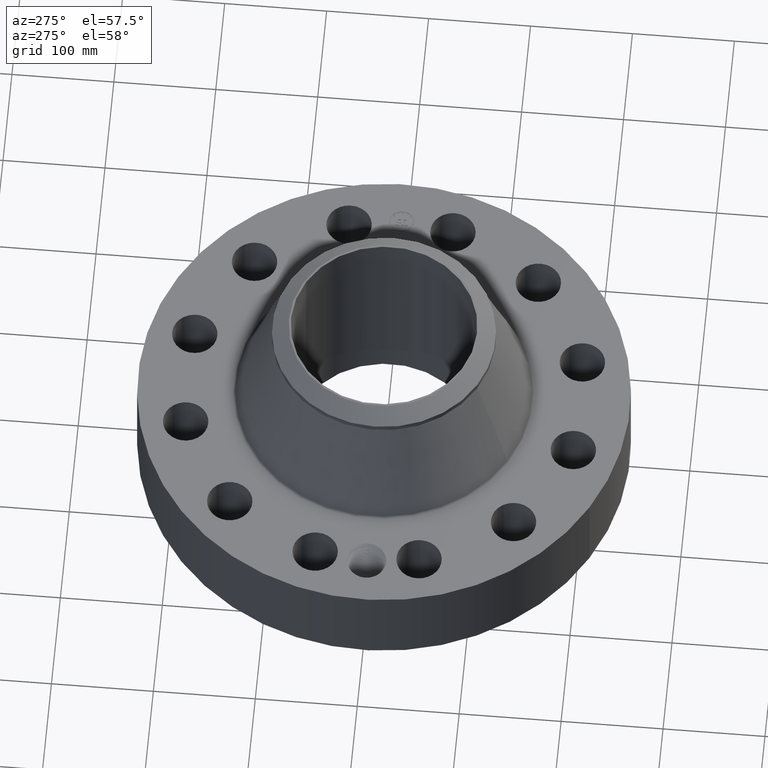
[diagram: clean part render]
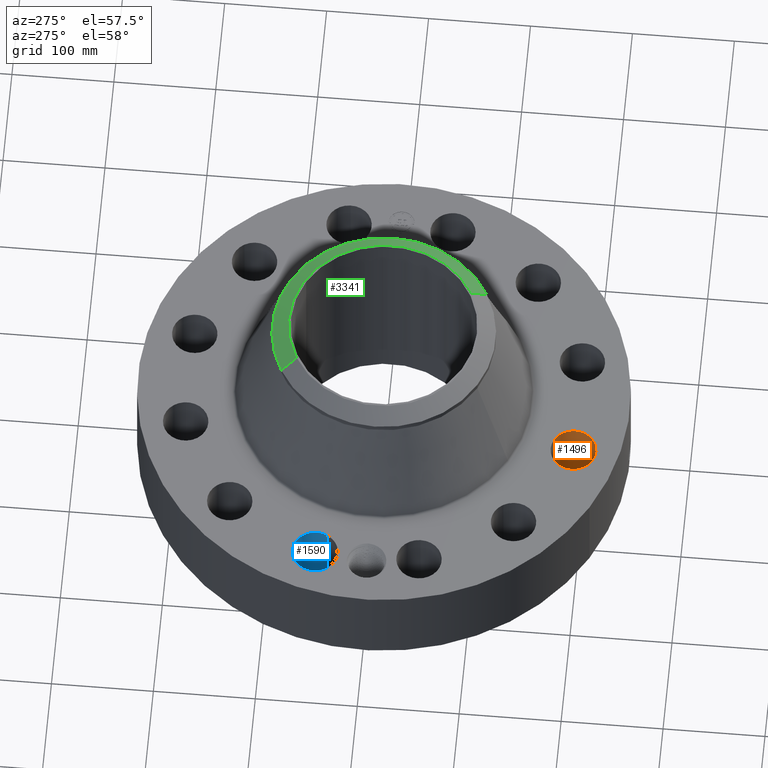
[diagram: same view with three faces highlighted in distinct colors, each labeled with its STEP entity id]
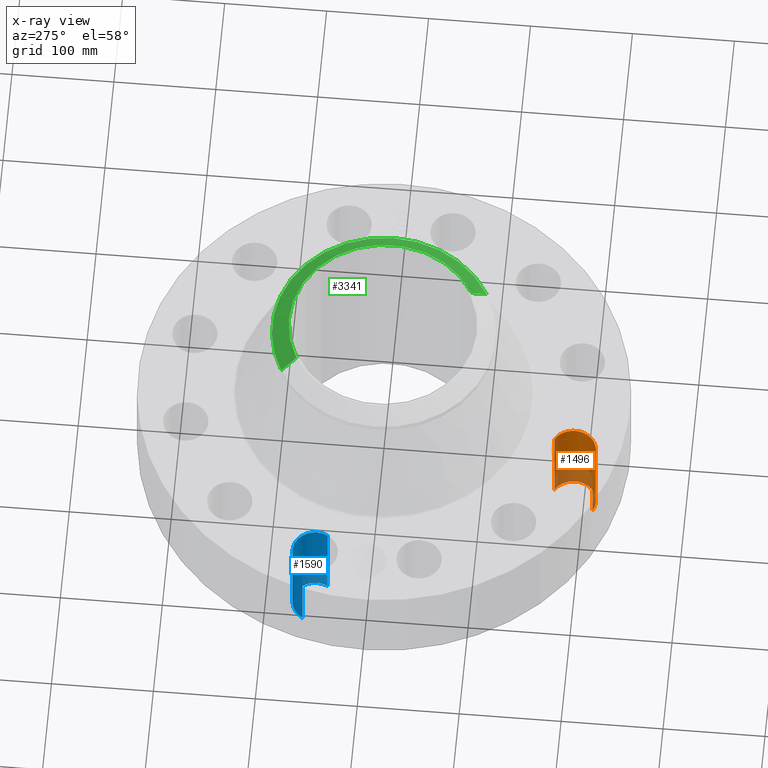
[diagram: x-ray of the same camera — body ghosted, the three highlighted faces saturated]
A machine part, auxiliary view with three faces highlighted in distinct colors.
The next image is the same camera in x-ray (body ghosted, the three faces saturated) — at least one of them is partly hidden behind the body in this view.
Their STEP definitions:

[orange] entity #1496 — the highlighted cylindrical surface (edge-blend (fillet) strip) has radius 22.225 mm, axis along (0, -0, -1).
#316=AXIS2_PLACEMENT_3D('Circle Axis2P3D',#314,#315,$) ;
#726=AXIS2_PLACEMENT_3D('Circle Axis2P3D',#724,#725,$) ;
#1478=AXIS2_PLACEMENT_3D('Cylinder Axis2P3D',#1475,#1476,#1477) ;
#314=CARTESIAN_POINT('Axis2P3D Location',(-2.00584759955,-7.48592515377,0.250000000001)) ;
#318=CARTESIAN_POINT('Vertex',(-1.58635025327,-6.71804041211,0.250000000001)) ;
#320=CARTESIAN_POINT('Vertex',(-2.42534494583,-8.25380989543,0.250000000001)) ;
#719=CARTESIAN_POINT('Vertex',(-2.42534494583,-8.25380989543,3.87000000002)) ;
#721=CARTESIAN_POINT('Vertex',(-1.58635025327,-6.71804041211,3.87000000002)) ;
#724=CARTESIAN_POINT('Axis2P3D Location',(-2.00584759955,-7.48592515377,3.87000000002)) ;
#1475=CARTESIAN_POINT('Axis2P3D Location',(-2.00584759955,-7.48592515377,3.86606299214)) ;
#1480=CARTESIAN_POINT('Line Origine',(-1.58635025327,-6.71804041211,2.06000000001)) ;
#1485=CARTESIAN_POINT('Line Origine',(-2.42534494583,-8.25380989543,2.06000000001)) ;
#315=DIRECTION('Axis2P3D Direction',(0.,0.,-0.0393700787402)) ;
#725=DIRECTION('Axis2P3D Direction',(0.,0.,-0.0393700787402)) ;
#1476=DIRECTION('Axis2P3D Direction',(0.,-0.,-0.0393700787402)) ;
#1477=DIRECTION('Axis2P3D XDirection',(-0.0188750212049,-0.0345504945626,0.)) ;
#1481=DIRECTION('Vector Direction',(0.,0.,-0.0393700787402)) ;
#1486=DIRECTION('Vector Direction',(0.,0.,-0.0393700787402)) ;
#1482=VECTOR('Line Direction',#1481,0.0393700787402) ;
#1487=VECTOR('Line Direction',#1486,0.0393700787402) ;
#1491=ORIENTED_EDGE('',*,*,#1484,.F.) ;
#1492=ORIENTED_EDGE('',*,*,#322,.T.) ;
#1493=ORIENTED_EDGE('',*,*,#1489,.T.) ;
#1494=ORIENTED_EDGE('',*,*,#728,.F.) ;
#1496=ADVANCED_FACE('PartBody',(#1495),#1479,.F.) ;
#317=CIRCLE('generated circle',#316,0.875000000003) ;
#727=CIRCLE('generated circle',#726,0.875000000003) ;
#1479=CYLINDRICAL_SURFACE('generated cylinder',#1478,0.875000000003) ;
#322=EDGE_CURVE('',#319,#321,#317,.T.) ;
#728=EDGE_CURVE('',#722,#720,#727,.T.) ;
#1484=EDGE_CURVE('',#319,#722,#1483,.F.) ;
#1489=EDGE_CURVE('',#321,#720,#1488,.F.) ;
#1490=EDGE_LOOP('',(#1491,#1492,#1493,#1494)) ;
#1495=FACE_OUTER_BOUND('',#1490,.T.) ;
#1483=LINE('Line',#1480,#1482) ;
#1488=LINE('Line',#1485,#1487) ;
#319=VERTEX_POINT('',#318) ;
#321=VERTEX_POINT('',#320) ;
#720=VERTEX_POINT('',#719) ;
#722=VERTEX_POINT('',#721) ;

[blue] entity #1590 — the highlighted cylindrical surface (edge-blend (fillet) strip) has radius 22.225 mm, axis along (-0, 0, -1).
#379=AXIS2_PLACEMENT_3D('Circle Axis2P3D',#377,#378,$) ;
#771=AXIS2_PLACEMENT_3D('Circle Axis2P3D',#769,#770,$) ;
#1565=AXIS2_PLACEMENT_3D('Cylinder Axis2P3D',#1562,#1563,#1564) ;
#372=CARTESIAN_POINT('Vertex',(-6.71804041211,1.58635025327,0.250000000001)) ;
#374=CARTESIAN_POINT('Vertex',(-8.25380989543,2.42534494583,0.250000000001)) ;
#377=CARTESIAN_POINT('Axis2P3D Location',(-7.48592515377,2.00584759955,0.250000000001)) ;
#769=CARTESIAN_POINT('Axis2P3D Location',(-7.48592515377,2.00584759955,3.87000000002)) ;
#773=CARTESIAN_POINT('Vertex',(-8.25380989543,2.42534494583,3.87000000002)) ;
#775=CARTESIAN_POINT('Vertex',(-6.71804041211,1.58635025327,3.87000000002)) ;
#1562=CARTESIAN_POINT('Axis2P3D Location',(-7.48592515377,2.00584759955,3.86606299214)) ;
#1567=CARTESIAN_POINT('Line Origine',(-6.71804041211,1.58635025327,2.06000000001)) ;
#1572=CARTESIAN_POINT('Line Origine',(-8.25380989543,2.42534494583,2.06000000001)) ;
#378=DIRECTION('Axis2P3D Direction',(0.,0.,-0.0393700787402)) ;
#770=DIRECTION('Axis2P3D Direction',(0.,0.,-0.0393700787402)) ;
#1563=DIRECTION('Axis2P3D Direction',(-0.,0.,-0.0393700787402)) ;
#1564=DIRECTION('Axis2P3D XDirection',(-0.0345504945626,0.0188750212049,0.)) ;
#1568=DIRECTION('Vector Direction',(0.,0.,-0.0393700787402)) ;
#1573=DIRECTION('Vector Direction',(0.,0.,-0.0393700787402)) ;
#1569=VECTOR('Line Direction',#1568,0.0393700787402) ;
#1574=VECTOR('Line Direction',#1573,0.0393700787402) ;
#1585=ORIENTED_EDGE('',*,*,#1576,.F.) ;
#1586=ORIENTED_EDGE('',*,*,#381,.T.) ;
#1587=ORIENTED_EDGE('',*,*,#1571,.T.) ;
#1588=ORIENTED_EDGE('',*,*,#777,.F.) ;
#1590=ADVANCED_FACE('PartBody',(#1589),#1566,.F.) ;
#380=CIRCLE('generated circle',#379,0.875000000003) ;
#772=CIRCLE('generated circle',#771,0.875000000003) ;
#1566=CYLINDRICAL_SURFACE('generated cylinder',#1565,0.875000000003) ;
#381=EDGE_CURVE('',#375,#373,#380,.T.) ;
#777=EDGE_CURVE('',#774,#776,#772,.T.) ;
#1571=EDGE_CURVE('',#373,#776,#1570,.F.) ;
#1576=EDGE_CURVE('',#375,#774,#1575,.F.) ;
#1584=EDGE_LOOP('',(#1585,#1586,#1587,#1588)) ;
#1589=FACE_OUTER_BOUND('',#1584,.T.) ;
#1570=LINE('Line',#1567,#1569) ;
#1575=LINE('Line',#1572,#1574) ;
#373=VERTEX_POINT('',#372) ;
#375=VERTEX_POINT('',#374) ;
#774=VERTEX_POINT('',#773) ;
#776=VERTEX_POINT('',#775) ;

[green] entity #3341 — the highlighted conical surface has half-angle 52.5 deg.
#2484=AXIS2_PLACEMENT_3D('Circle Axis2P3D',#2482,#2483,$) ;
#3286=AXIS2_PLACEMENT_3D('Cone Axis2P3D',#3283,#3284,#3285) ;
#3324=AXIS2_PLACEMENT_3D('Circle Axis2P3D',#3322,#3323,$) ;
#3331=AXIS2_PLACEMENT_3D('Circle Axis2P3D',#3329,#3330,$) ;
#2482=CARTESIAN_POINT('Axis2P3D Location',(0.,0.,8.63000000003)) ;
#2486=CARTESIAN_POINT('Vertex',(1.76056571539,-3.22269392529,8.63000000003)) ;
#2488=CARTESIAN_POINT('Vertex',(-1.76056571539,3.22269392529,8.63000000003)) ;
#3283=CARTESIAN_POINT('Axis2P3D Location',(0.,0.,8.63000000003)) ;
#3288=CARTESIAN_POINT('Line Origine',(1.91464345724,-3.50473133993,8.38339651306)) ;
#3292=CARTESIAN_POINT('Vertex',(2.06872119909,-3.78676875457,8.13679302608)) ;
#3295=CARTESIAN_POINT('Line Origine',(-1.91464345724,3.50473133993,8.38339651306)) ;
#3299=CARTESIAN_POINT('Vertex',(-2.06872119909,3.78676875457,8.13679302608)) ;
#3322=CARTESIAN_POINT('Axis2P3D Location',(0.,0.,8.13679302608)) ;
#3326=CARTESIAN_POINT('Vertex',(2.06872119909,3.78676875457,8.13679302608)) ;
#3329=CARTESIAN_POINT('Axis2P3D Location',(0.,0.,8.13679302608)) ;
#2483=DIRECTION('Axis2P3D Direction',(0.,0.,-0.0393700787402)) ;
#3284=DIRECTION('Axis2P3D Direction',(-0.,-0.,-0.0393700787402)) ;
#3285=DIRECTION('Axis2P3D XDirection',(-0.0188750212049,0.0345504945626,0.)) ;
#3289=DIRECTION('Vector Direction',(0.014974561121,-0.02741075027,-0.023966985394)) ;
#3296=DIRECTION('Vector Direction',(-0.014974561121,0.02741075027,-0.023966985394)) ;
#3323=DIRECTION('Axis2P3D Direction',(0.,0.,-0.0393700787402)) ;
#3330=DIRECTION('Axis2P3D Direction',(0.,0.,-0.0393700787402)) ;
#3290=VECTOR('Line Direction',#3289,0.0393700787402) ;
#3297=VECTOR('Line Direction',#3296,0.0393700787402) ;
#3335=ORIENTED_EDGE('',*,*,#3301,.F.) ;
#3336=ORIENTED_EDGE('',*,*,#2490,.F.) ;
#3337=ORIENTED_EDGE('',*,*,#3294,.T.) ;
#3338=ORIENTED_EDGE('',*,*,#3328,.T.) ;
#3339=ORIENTED_EDGE('',*,*,#3333,.F.) ;
#3341=ADVANCED_FACE('PartBody',(#3340),#3287,.T.) ;
#2485=CIRCLE('generated circle',#2484,3.67224015749) ;
#3325=CIRCLE('generated circle',#3324,4.31500000002) ;
#3332=CIRCLE('generated circle',#3331,4.31500000002) ;
#3287=CONICAL_SURFACE('Cone',#3286,3.67224015749,0.916297857297) ;
#2490=EDGE_CURVE('',#2487,#2489,#2485,.F.) ;
#3294=EDGE_CURVE('',#2487,#3293,#3291,.T.) ;
#3301=EDGE_CURVE('',#2489,#3300,#3298,.T.) ;
#3328=EDGE_CURVE('',#3293,#3327,#3325,.F.) ;
#3333=EDGE_CURVE('',#3300,#3327,#3332,.T.) ;
#3334=EDGE_LOOP('',(#3335,#3336,#3337,#3338,#3339)) ;
#3340=FACE_OUTER_BOUND('',#3334,.T.) ;
#3291=LINE('Line',#3288,#3290) ;
#3298=LINE('Line',#3295,#3297) ;
#2487=VERTEX_POINT('',#2486) ;
#2489=VERTEX_POINT('',#2488) ;
#3293=VERTEX_POINT('',#3292) ;
#3300=VERTEX_POINT('',#3299) ;
#3327=VERTEX_POINT('',#3326) ;